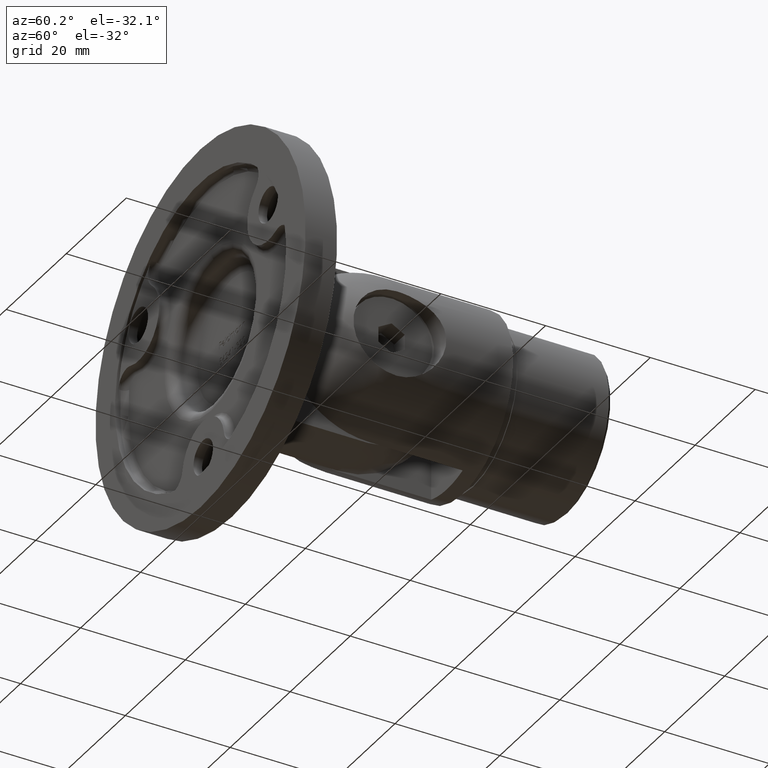
[diagram: clean part render]
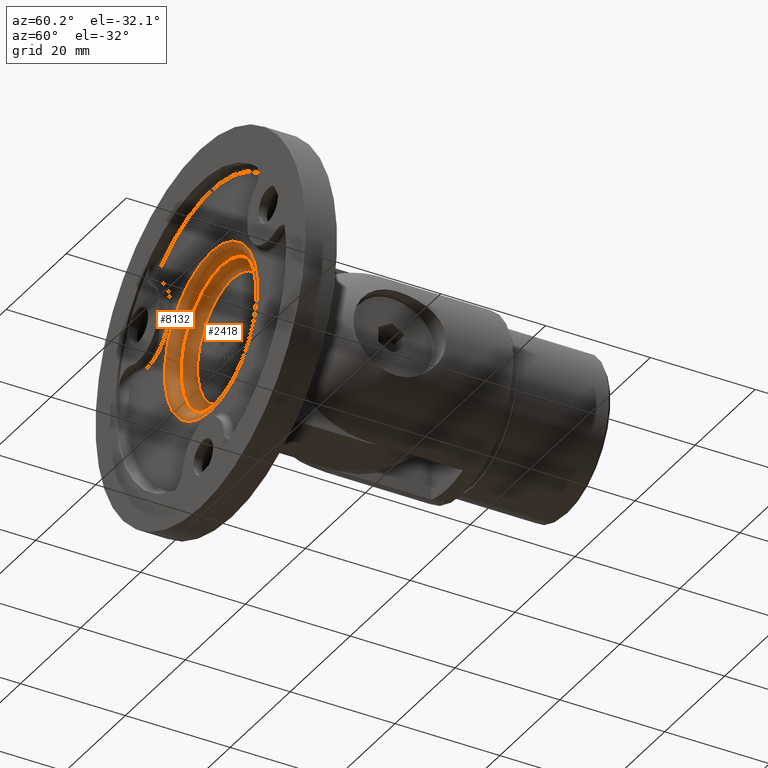
[diagram: same view with one multi-face feature highlighted, each face labeled with its STEP entity id]
A machine part, auxiliary view. The highlighted faces form ONE feature: a constant-radius fillet chain: 2 tangent blend faces with common blend radius 2 mm. The faces share edges in the B-rep.
Their STEP definitions:
[1] entity #2418 (Torus):
#352 = DIRECTION ( 'NONE',  ( 0.000000000000000000, -1.000000000000000000, 0.000000000000000000 ) ) ;
#721 = CARTESIAN_POINT ( 'NONE',  ( 0.000000000000000000, 4.000000000000000000, 13.50000000000000000 ) ) ;
#1274 = CIRCLE ( 'NONE', #4263, 11.50000000000000000 ) ;
#1334 = DIRECTION ( 'NONE',  ( 0.000000000000000000, -1.000000000000000000, 0.000000000000000000 ) ) ;
#1522 = TOROIDAL_SURFACE ( 'NONE', #8157, 11.50000000000000000, 2.000000000000000000 ) ;
#2053 = CARTESIAN_POINT ( 'NONE',  ( 0.000000000000000000, 6.000000000000000000, -11.50000000000000000 ) ) ;
#2418 = ADVANCED_FACE ( 'NONE', ( #12419, #15278 ), #1522, .F. ) ;
#2720 = CARTESIAN_POINT ( 'NONE',  ( 0.000000000000000000, 6.000000000000000000, 0.000000000000000000 ) ) ;
#4263 = AXIS2_PLACEMENT_3D ( 'NONE', #2720, #1334, #9964 ) ;
#4849 = ORIENTED_EDGE ( 'NONE', *, *, #13956, .T. ) ;
#5463 = VERTEX_POINT ( 'NONE', #721 ) ;
#5986 = AXIS2_PLACEMENT_3D ( 'NONE', #6440, #352, #12585 ) ;
#6243 = CARTESIAN_POINT ( 'NONE',  ( 0.000000000000000000, 4.000000000000000000, 0.000000000000000000 ) ) ;
#6418 = VERTEX_POINT ( 'NONE', #2053 ) ;
#6440 = CARTESIAN_POINT ( 'NONE',  ( 0.000000000000000000, 4.000000000000000000, 0.000000000000000000 ) ) ;
#8157 = AXIS2_PLACEMENT_3D ( 'NONE', #6243, #11133, #14858 ) ;
#8984 = EDGE_LOOP ( 'NONE', ( #4849 ) ) ;
#9063 = ORIENTED_EDGE ( 'NONE', *, *, #15788, .F. ) ;
#9935 = CIRCLE ( 'NONE', #5986, 13.50000000000000000 ) ;
#9964 = DIRECTION ( 'NONE',  ( 0.000000000000000000, 0.000000000000000000, -1.000000000000000000 ) ) ;
#11133 = DIRECTION ( 'NONE',  ( 0.000000000000000000, -1.000000000000000000, 0.000000000000000000 ) ) ;
#12419 = FACE_OUTER_BOUND ( 'NONE', #8984, .T. ) ;
#12585 = DIRECTION ( 'NONE',  ( 0.000000000000000000, 0.000000000000000000, 1.000000000000000000 ) ) ;
#13956 = EDGE_CURVE ( 'NONE', #5463, #5463, #9935, .T. ) ;
#14811 = EDGE_LOOP ( 'NONE', ( #9063 ) ) ;
#14858 = DIRECTION ( 'NONE',  ( 0.000000000000000000, 0.000000000000000000, -1.000000000000000000 ) ) ;
#15278 = FACE_OUTER_BOUND ( 'NONE', #14811, .T. ) ;
#15788 = EDGE_CURVE ( 'NONE', #6418, #6418, #1274, .T. ) ;
[2] entity #8132 (Torus):
#352 = DIRECTION ( 'NONE',  ( 0.000000000000000000, -1.000000000000000000, 0.000000000000000000 ) ) ;
#721 = CARTESIAN_POINT ( 'NONE',  ( 0.000000000000000000, 4.000000000000000000, 13.50000000000000000 ) ) ;
#1125 = CARTESIAN_POINT ( 'NONE',  ( 0.000000000000000000, 4.000000000000000000, 0.000000000000000000 ) ) ;
#1411 = AXIS2_PLACEMENT_3D ( 'NONE', #1576, #7615, #2806 ) ;
#1576 = CARTESIAN_POINT ( 'NONE',  ( 0.000000000000000000, 2.000000000000000000, 0.000000000000000000 ) ) ;
#2806 = DIRECTION ( 'NONE',  ( 0.000000000000000000, 0.000000000000000000, 1.000000000000000000 ) ) ;
#3078 = EDGE_LOOP ( 'NONE', ( #6665 ) ) ;
#3155 = FACE_OUTER_BOUND ( 'NONE', #8453, .T. ) ;
#4127 = VERTEX_POINT ( 'NONE', #13932 ) ;
#4217 = EDGE_CURVE ( 'NONE', #4127, #4127, #6283, .T. ) ;
#5463 = VERTEX_POINT ( 'NONE', #721 ) ;
#5986 = AXIS2_PLACEMENT_3D ( 'NONE', #6440, #352, #12585 ) ;
#6179 = ORIENTED_EDGE ( 'NONE', *, *, #13956, .F. ) ;
#6283 = CIRCLE ( 'NONE', #1411, 15.50000000000000000 ) ;
#6440 = CARTESIAN_POINT ( 'NONE',  ( 0.000000000000000000, 4.000000000000000000, 0.000000000000000000 ) ) ;
#6665 = ORIENTED_EDGE ( 'NONE', *, *, #4217, .F. ) ;
#7615 = DIRECTION ( 'NONE',  ( -0.000000000000000000, 1.000000000000000000, -0.000000000000000000 ) ) ;
#8132 = ADVANCED_FACE ( 'NONE', ( #8543, #3155 ), #15579, .T. ) ;
#8368 = DIRECTION ( 'NONE',  ( 0.000000000000000000, 0.000000000000000000, 1.000000000000000000 ) ) ;
#8431 = AXIS2_PLACEMENT_3D ( 'NONE', #1125, #11986, #8368 ) ;
#8453 = EDGE_LOOP ( 'NONE', ( #6179 ) ) ;
#8543 = FACE_OUTER_BOUND ( 'NONE', #3078, .T. ) ;
#9935 = CIRCLE ( 'NONE', #5986, 13.50000000000000000 ) ;
#11986 = DIRECTION ( 'NONE',  ( -0.000000000000000000, 1.000000000000000000, -0.000000000000000000 ) ) ;
#12585 = DIRECTION ( 'NONE',  ( 0.000000000000000000, 0.000000000000000000, 1.000000000000000000 ) ) ;
#13932 = CARTESIAN_POINT ( 'NONE',  ( 0.000000000000000000, 2.000000000000000000, 15.50000000000000000 ) ) ;
#13956 = EDGE_CURVE ( 'NONE', #5463, #5463, #9935, .T. ) ;
#15579 = TOROIDAL_SURFACE ( 'NONE', #8431, 15.50000000000000000, 2.000000000000000000 ) ;